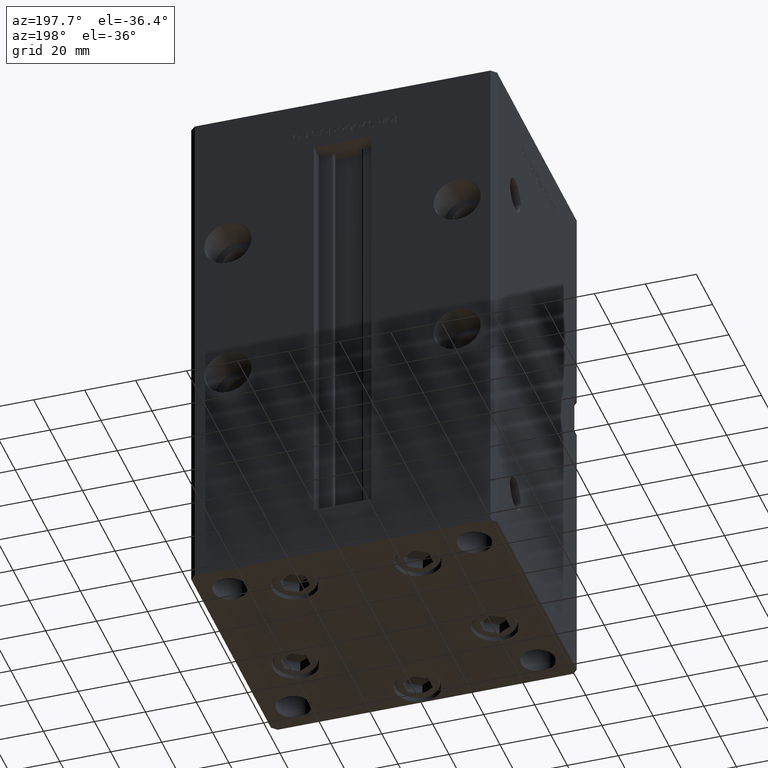
[diagram: clean part render]
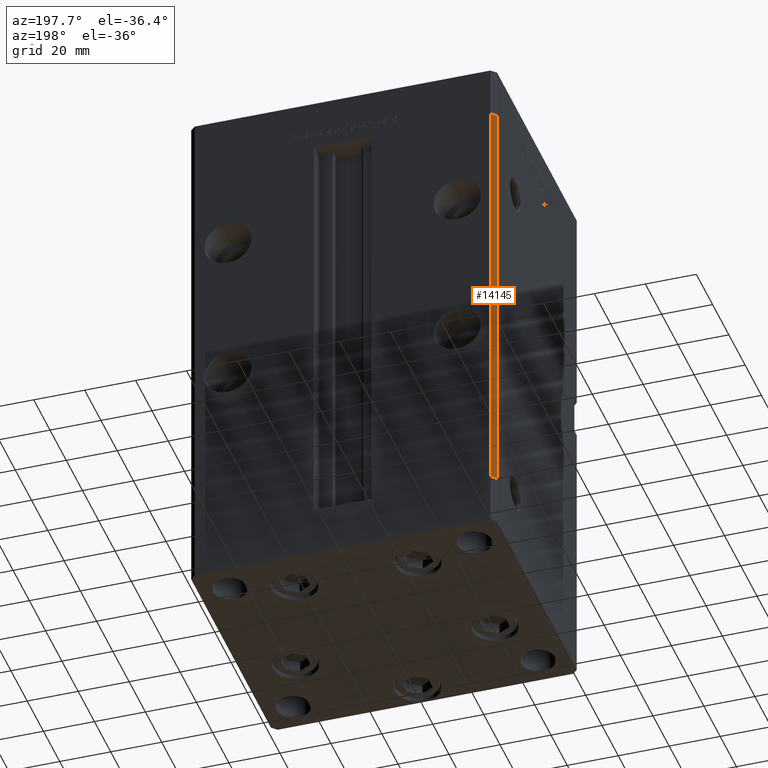
[diagram: same view with one face highlighted and labeled with its STEP entity id]
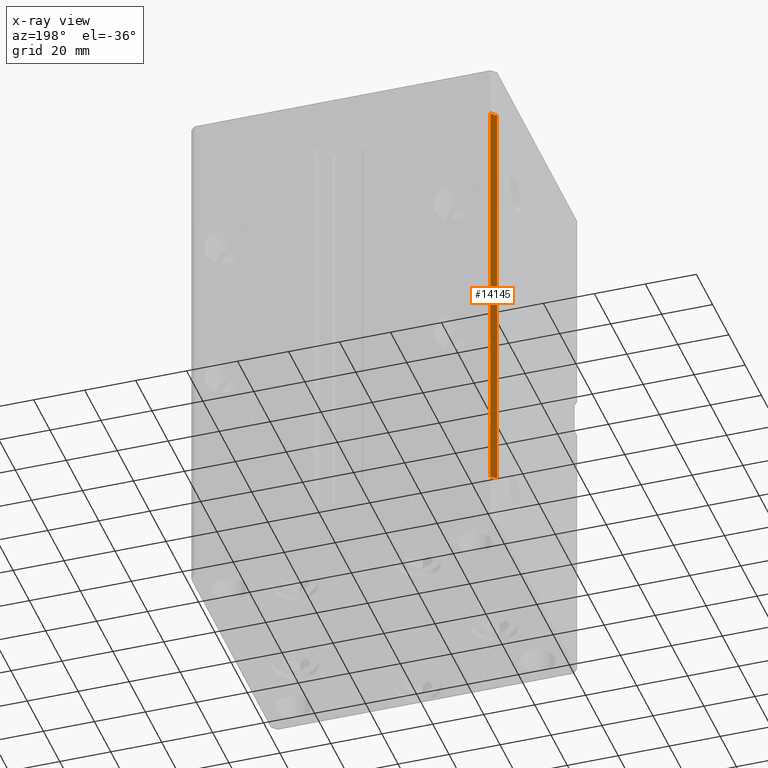
[diagram: x-ray of the same camera — body ghosted, the highlighted face saturated]
A machine part, auxiliary view. The second image highlights one B-rep face of the part: STEP entity #14145.
The next image is the same camera in x-ray: the body ghosted, the highlighted face saturated — about 0% of this face is hidden behind the body in this view.
In plain terms, the highlighted planar face has unit normal (0.7071, -0.7071, 0).
Its self-contained STEP definition (entity closure, byte-faithful):
#542 = EDGE_LOOP ( 'NONE', ( #38965, #33014, #937, #3510 ) ) ;
#937 = ORIENTED_EDGE ( 'NONE', *, *, #45775, .F. ) ;
#2272 = VERTEX_POINT ( 'NONE', #11129 ) ;
#3095 = VECTOR ( 'NONE', #12249, 1000.000000000000000 ) ;
#3510 = ORIENTED_EDGE ( 'NONE', *, *, #45539, .T. ) ;
#4716 = CARTESIAN_POINT ( 'NONE',  ( -60.00000000000001421, 49.00000000000000000, 168.5000000000000000 ) ) ;
#4953 = CARTESIAN_POINT ( 'NONE',  ( -60.00000000000001421, 49.00000000000000000, 168.5000000000000000 ) ) ;
#6752 = CARTESIAN_POINT ( 'NONE',  ( -57.99999999999999289, 51.00000000000000711, 168.5000000000000000 ) ) ;
#7136 = PLANE ( 'NONE',  #48960 ) ;
#8502 = CARTESIAN_POINT ( 'NONE',  ( -57.99999999999999289, 51.00000000000000711, 168.5000000000000000 ) ) ;
#11129 = CARTESIAN_POINT ( 'NONE',  ( -60.00000000000001421, 49.00000000000000000, 0.000000000000000000 ) ) ;
#11430 = FACE_OUTER_BOUND ( 'NONE', #542, .T. ) ;
#12249 = DIRECTION ( 'NONE',  ( -0.000000000000000000, -0.000000000000000000, -1.000000000000000000 ) ) ;
#13485 = CARTESIAN_POINT ( 'NONE',  ( -57.99999999999999289, 51.00000000000000711, 0.000000000000000000 ) ) ;
#14145 = ADVANCED_FACE ( 'NONE', ( #11430 ), #7136, .F. ) ;
#14888 = VERTEX_POINT ( 'NONE', #13485 ) ;
#16174 = CARTESIAN_POINT ( 'NONE',  ( -57.99999999999999289, 51.00000000000000711, 168.5000000000000000 ) ) ;
#20262 = DIRECTION ( 'NONE',  ( 0.7071067811865451302, -0.7071067811865500152, 0.000000000000000000 ) ) ;
#20844 = VECTOR ( 'NONE', #30507, 1000.000000000000114 ) ;
#22193 = CARTESIAN_POINT ( 'NONE',  ( -57.99999999999999289, 51.00000000000000711, 0.000000000000000000 ) ) ;
#23118 = VECTOR ( 'NONE', #51872, 1000.000000000000114 ) ;
#23519 = EDGE_CURVE ( 'NONE', #14888, #2272, #51170, .T. ) ;
#23951 = VECTOR ( 'NONE', #24876, 1000.000000000000000 ) ;
#24347 = LINE ( 'NONE', #8502, #23951 ) ;
#24876 = DIRECTION ( 'NONE',  ( -0.000000000000000000, -0.000000000000000000, -1.000000000000000000 ) ) ;
#30507 = DIRECTION ( 'NONE',  ( -0.7071067811865500152, -0.7071067811865451302, 0.000000000000000000 ) ) ;
#33014 = ORIENTED_EDGE ( 'NONE', *, *, #36758, .F. ) ;
#33434 = LINE ( 'NONE', #4716, #3095 ) ;
#36758 = EDGE_CURVE ( 'NONE', #46885, #2272, #33434, .T. ) ;
#38965 = ORIENTED_EDGE ( 'NONE', *, *, #23519, .T. ) ;
#39857 = CARTESIAN_POINT ( 'NONE',  ( -57.99999999999999289, 51.00000000000000711, 168.5000000000000000 ) ) ;
#40116 = DIRECTION ( 'NONE',  ( 0.7071067811865500152, 0.7071067811865451302, 0.000000000000000000 ) ) ;
#44315 = LINE ( 'NONE', #16174, #23118 ) ;
#45539 = EDGE_CURVE ( 'NONE', #50587, #14888, #24347, .T. ) ;
#45775 = EDGE_CURVE ( 'NONE', #50587, #46885, #44315, .T. ) ;
#46885 = VERTEX_POINT ( 'NONE', #4953 ) ;
#48960 = AXIS2_PLACEMENT_3D ( 'NONE', #39857, #20262, #40116 ) ;
#50587 = VERTEX_POINT ( 'NONE', #6752 ) ;
#51170 = LINE ( 'NONE', #22193, #20844 ) ;
#51872 = DIRECTION ( 'NONE',  ( -0.7071067811865500152, -0.7071067811865451302, 0.000000000000000000 ) ) ;